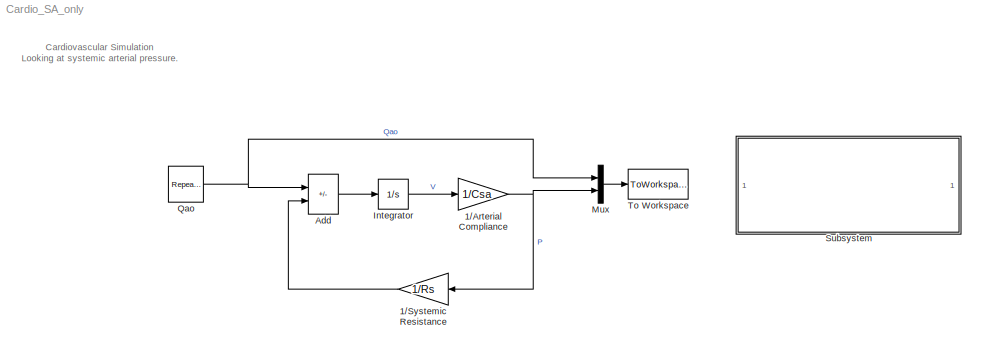
MODEL Cardio_SA_only
KIND model
CONFIG PreLoadFcn = %This Model has been adapted from the MATLAB code presented in Hoppensteadt\n%and Peskin \"Modling and Simulation in Medicine and the Life Sciences\n\n%Time parameters\nT = 0.0125;            % Duration of heartbeat (minutes)\nTs = 0.0050;           % Duration of systole   (minutes)\nStroke_volume = 70e-3; % L\nTmax = 0.0020;         % Time at which flow is maximum (minutes)\nQmax= Stroke_volume/(...<+284ch>
BLOCK [Gain] 1//Arterial Compliance
  Gain = 1/Csa
  SID = 1
BLOCK [Gain] 1//Systemic Resistance 
  Gain = 1/Rs
  SID = 2
BLOCK [Sum] Add
  IconShape = rectangular
  Inputs = +-
  Ports = [2, 1]
  SID = 3
BLOCK [Integrator] Integrator
  Ports = [1, 1]
  SID = 8
BLOCK [Mux] Mux
  DisplayOption = bar
  Inputs = 2
  Ports = [2, 1]
  SID = 27
BLOCK [Reference] Qao  REF=simulink/Sources/Repeating\nSequence
  Ports = [0, 1]
  RTWMemSecDataConstants = Inherit from model
  RTWMemSecDataInternal = Inherit from model
  RTWMemSecDataParameters = Inherit from model
  RTWMemSecFuncExecute = Inherit from model
  RTWMemSecFuncInitTerm = Inherit from model
  SID = 19
  SourceBlock = simulink/Sources/Repeating\nSequence
  SourceProductBaseCode = SL
  SourceType = Repeating table
  rep_seq_t = [0 Tmax Ts T]
  rep_seq_y = [0 Qmax 0 0]
BLOCK [SubSystem] Subsystem
  Ports = []
  RequestExecContextInheritance = off
  SID = 23
BLOCK [ToWorkspace] To Workspace
  MaxDataPoints = inf
  Ports = [1]
  SID = 26
  SampleTime = -1
  SaveFormat = Structure With Time
  VariableName = SAonly
ANNOTATION (root): Cardiovascular Simulation\nLooking at systemic arterial pressure.
NET 1//Arterial Compliance:1 -> 1//Systemic Resistance :1, Mux:2
LINE 1//Systemic Resistance :1 -> Add:2
LINE Add:1 -> Integrator:1
LINE Integrator:1 -> 1//Arterial Compliance:1
LINE Mux:1 -> To Workspace:1
NET Qao:1 -> Add:1, Mux:1
note: NET lines group one-source signal fan-out (src -> all destinations, sorted); 1:1 wires keep LINE
